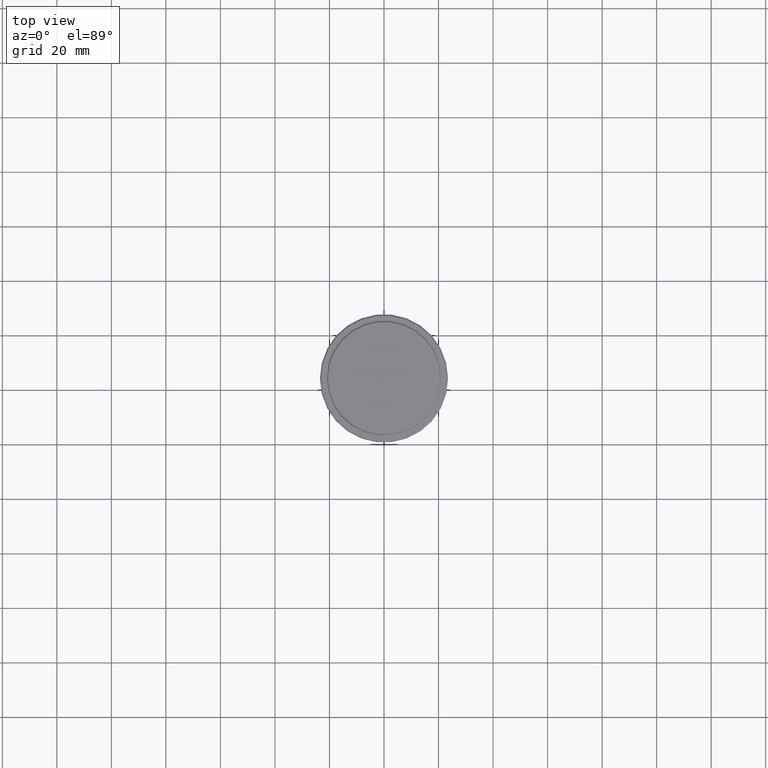
[diagram: clean part render]
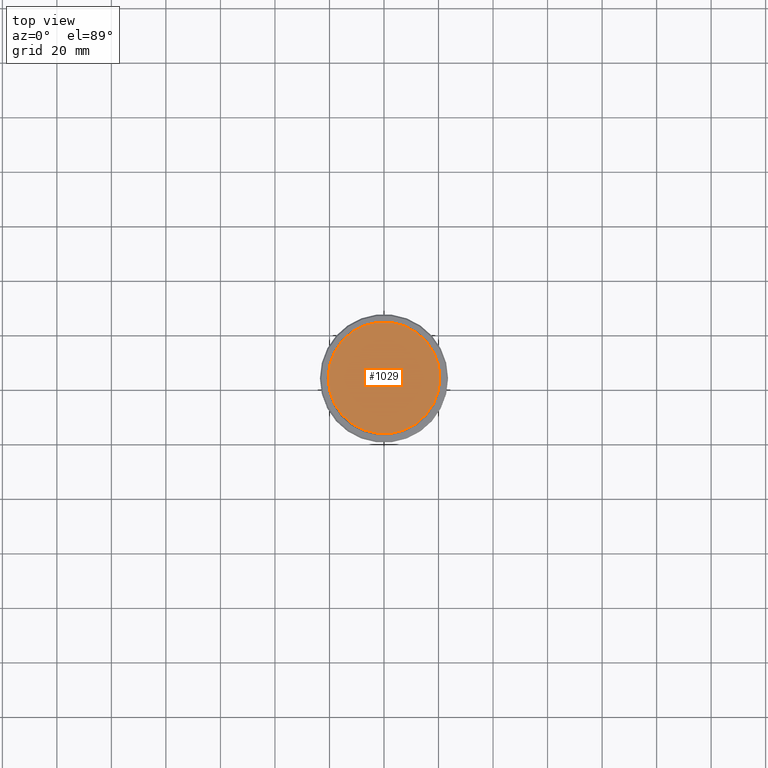
[diagram: same view with one face highlighted and labeled with its STEP entity id]
A machine part, top view. The second image highlights one B-rep face of the part: STEP entity #1029.
In plain terms, the highlighted planar face has unit normal (0, -0, 1).
Its self-contained STEP definition (entity closure, byte-faithful):
#3 = VERTEX_POINT ( 'NONE', #580 ) ;
#133 = AXIS2_PLACEMENT_3D ( 'NONE', #893, #1336, #682 ) ;
#238 = FACE_OUTER_BOUND ( 'NONE', #247, .T. ) ;
#247 = EDGE_LOOP ( 'NONE', ( #1365, #540 ) ) ;
#308 = AXIS2_PLACEMENT_3D ( 'NONE', #738, #1070, #724 ) ;
#317 = DIRECTION ( 'NONE',  ( -0.000000000000000000, -0.000000000000000000, 1.000000000000000000 ) ) ;
#343 = DIRECTION ( 'NONE',  ( 1.000000000000000000, 0.000000000000000000, 0.000000000000000000 ) ) ;
#373 = EDGE_CURVE ( 'NONE', #3, #442, #1271, .T. ) ;
#442 = VERTEX_POINT ( 'NONE', #591 ) ;
#455 = CIRCLE ( 'NONE', #308, 20.50000000000007461 ) ;
#463 = PLANE ( 'NONE',  #133 ) ;
#540 = ORIENTED_EDGE ( 'NONE', *, *, #1134, .T. ) ;
#580 = CARTESIAN_POINT ( 'NONE',  ( -20.50000000000007461, 0.000000000000000000, 0.000000000000000000 ) ) ;
#591 = CARTESIAN_POINT ( 'NONE',  ( 20.50000000000007461, 2.541142108230762213E-15, 0.000000000000000000 ) ) ;
#682 = DIRECTION ( 'NONE',  ( 1.000000000000000000, 0.000000000000000000, 0.000000000000000000 ) ) ;
#724 = DIRECTION ( 'NONE',  ( 1.000000000000000000, 0.000000000000000000, 0.000000000000000000 ) ) ;
#738 = CARTESIAN_POINT ( 'NONE',  ( 0.000000000000000000, 0.000000000000000000, 0.000000000000000000 ) ) ;
#829 = AXIS2_PLACEMENT_3D ( 'NONE', #1308, #317, #343 ) ;
#893 = CARTESIAN_POINT ( 'NONE',  ( 0.000000000000000000, 0.000000000000000000, 0.000000000000000000 ) ) ;
#1029 = ADVANCED_FACE ( 'NONE', ( #238 ), #463, .T. ) ;
#1070 = DIRECTION ( 'NONE',  ( -0.000000000000000000, -0.000000000000000000, 1.000000000000000000 ) ) ;
#1134 = EDGE_CURVE ( 'NONE', #442, #3, #455, .T. ) ;
#1271 = CIRCLE ( 'NONE', #829, 20.50000000000007461 ) ;
#1308 = CARTESIAN_POINT ( 'NONE',  ( 0.000000000000000000, 0.000000000000000000, 0.000000000000000000 ) ) ;
#1336 = DIRECTION ( 'NONE',  ( 0.000000000000000000, -0.000000000000000000, 1.000000000000000000 ) ) ;
#1365 = ORIENTED_EDGE ( 'NONE', *, *, #373, .T. ) ;